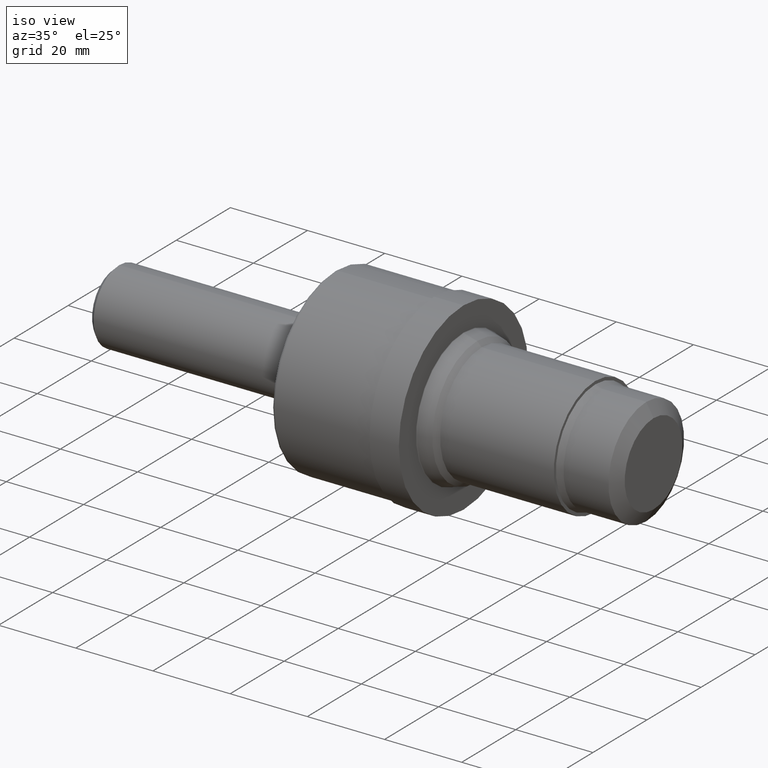
[diagram: clean part render]
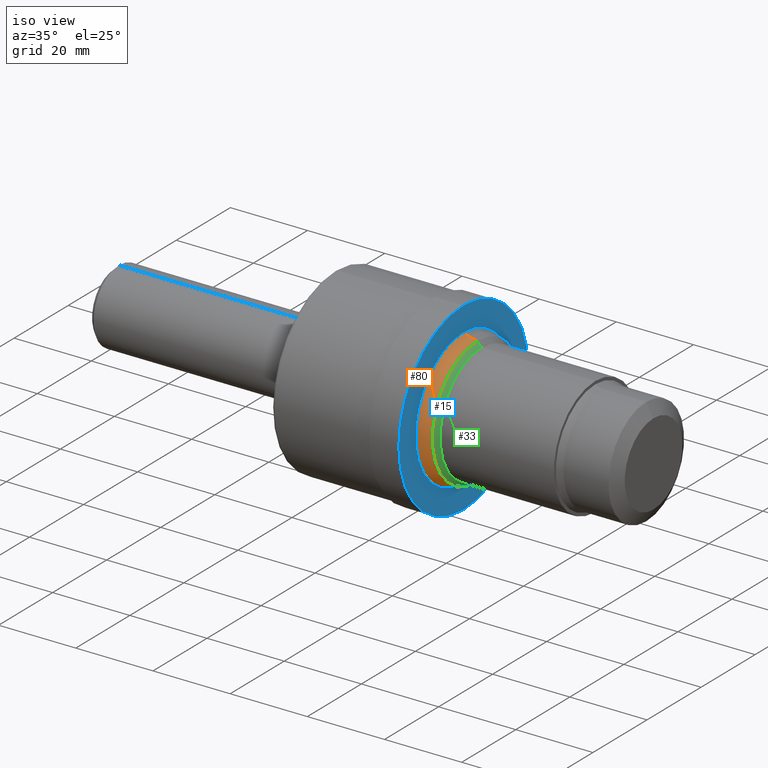
[diagram: same view with three faces highlighted in distinct colors, each labeled with its STEP entity id]
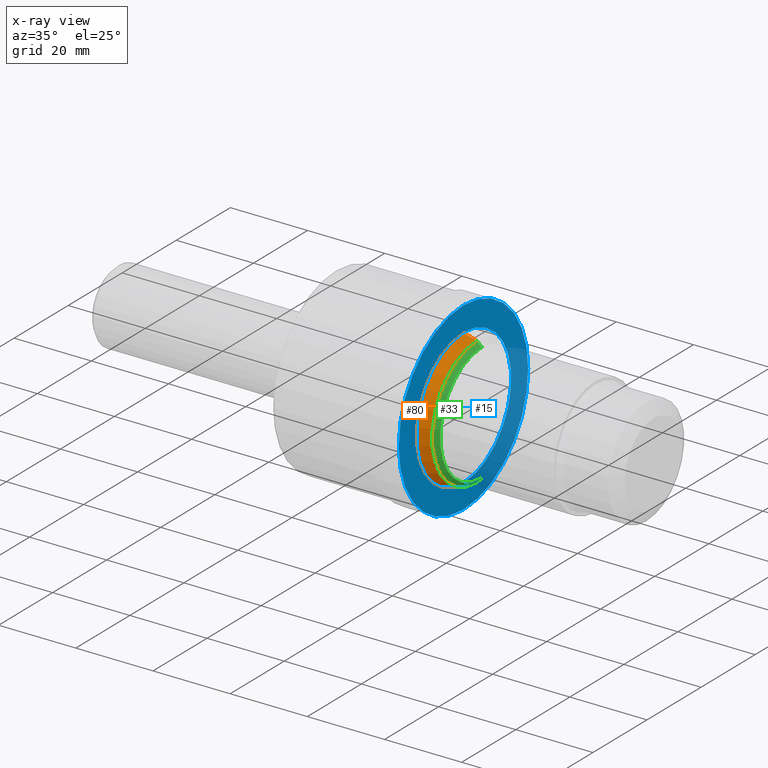
[diagram: x-ray of the same camera — body ghosted, the three highlighted faces saturated]
A machine part, iso view with three faces highlighted in distinct colors.
The next image is the same camera in x-ray (body ghosted, the three faces saturated) — at least one of them is partly hidden behind the body in this view.
Their STEP definitions:

[orange] entity #80 — the highlighted conical surface has half-angle 15 deg.
#37 = ORIENTED_EDGE ( 'NONE', *, *, #867, .T. ) ;
#69 = CARTESIAN_POINT ( 'NONE',  ( 3.566929447639179962, 8.403051286603852342E-17, -0.6861612092935190921 ) ) ;
#80 = ADVANCED_FACE ( 'NONE', ( #123 ), #722, .T. ) ;
#86 = LINE ( 'NONE', #842, #636 ) ;
#113 = CARTESIAN_POINT ( 'NONE',  ( 3.699000000000000288, 0.0000000000000000000, 0.0000000000000000000 ) ) ;
#119 = DIRECTION ( 'NONE',  ( -1.000000000000000000, -0.0000000000000000000, -0.0000000000000000000 ) ) ;
#123 = FACE_OUTER_BOUND ( 'NONE', #584, .T. ) ;
#141 = CARTESIAN_POINT ( 'NONE',  ( 3.699000000000000288, 0.0000000000000000000, 0.6507730114445050562 ) ) ;
#143 = ORIENTED_EDGE ( 'NONE', *, *, #638, .F. ) ;
#148 = DIRECTION ( 'NONE',  ( 0.0000000000000000000, 0.0000000000000000000, 1.000000000000000000 ) ) ;
#156 = ORIENTED_EDGE ( 'NONE', *, *, #260, .F. ) ;
#186 = DIRECTION ( 'NONE',  ( -0.9659258262890679791, 3.169619151431769255E-17, -0.2588190451025211281 ) ) ;
#240 = AXIS2_PLACEMENT_3D ( 'NONE', #443, #618, #557 ) ;
#242 = CARTESIAN_POINT ( 'NONE',  ( 3.699000000000000288, 0.0000000000000000000, 0.0000000000000000000 ) ) ;
#260 = EDGE_CURVE ( 'NONE', #433, #634, #289, .T. ) ;
#267 = DIRECTION ( 'NONE',  ( 0.0000000000000000000, 0.0000000000000000000, 1.000000000000000000 ) ) ;
#289 = LINE ( 'NONE', #498, #624 ) ;
#312 = CIRCLE ( 'NONE', #240, 0.6861612092935190921 ) ;
#424 = VERTEX_POINT ( 'NONE', #705 ) ;
#433 = VERTEX_POINT ( 'NONE', #864 ) ;
#443 = CARTESIAN_POINT ( 'NONE',  ( 3.566929447639179962, 0.0000000000000000000, 0.0000000000000000000 ) ) ;
#485 = DIRECTION ( 'NONE',  ( -1.000000000000000000, -0.0000000000000000000, -0.0000000000000000000 ) ) ;
#498 = CARTESIAN_POINT ( 'NONE',  ( 3.699000000000000288, 7.969670854369969121E-17, -0.6507730114445050562 ) ) ;
#554 = VERTEX_POINT ( 'NONE', #141 ) ;
#557 = DIRECTION ( 'NONE',  ( 0.0000000000000000000, 0.0000000000000000000, 1.000000000000000000 ) ) ;
#567 = ORIENTED_EDGE ( 'NONE', *, *, #730, .T. ) ;
#584 = EDGE_LOOP ( 'NONE', ( #156, #567, #37, #143 ) ) ;
#608 = CIRCLE ( 'NONE', #688, 0.6507730114445050562 ) ;
#618 = DIRECTION ( 'NONE',  ( -1.000000000000000000, -0.0000000000000000000, -0.0000000000000000000 ) ) ;
#624 = VECTOR ( 'NONE', #186, 39.37007874015748854 ) ;
#634 = VERTEX_POINT ( 'NONE', #69 ) ;
#636 = VECTOR ( 'NONE', #657, 39.37007874015748854 ) ;
#638 = EDGE_CURVE ( 'NONE', #634, #424, #312, .T. ) ;
#657 = DIRECTION ( 'NONE',  ( -0.9659258262890679791, 0.0000000000000000000, 0.2588190451025211281 ) ) ;
#688 = AXIS2_PLACEMENT_3D ( 'NONE', #113, #485, #148 ) ;
#705 = CARTESIAN_POINT ( 'NONE',  ( 3.566929447639179962, 0.0000000000000000000, 0.6861612092935190921 ) ) ;
#722 = CONICAL_SURFACE ( 'NONE', #747, 0.6507730114445050562, 0.2617993877991498519 ) ;
#730 = EDGE_CURVE ( 'NONE', #433, #554, #608, .T. ) ;
#747 = AXIS2_PLACEMENT_3D ( 'NONE', #242, #119, #267 ) ;
#842 = CARTESIAN_POINT ( 'NONE',  ( 3.699000000000000288, 0.0000000000000000000, 0.6507730114445050562 ) ) ;
#864 = CARTESIAN_POINT ( 'NONE',  ( 3.699000000000000288, 7.969670854369969121E-17, -0.6507730114445050562 ) ) ;
#867 = EDGE_CURVE ( 'NONE', #554, #424, #86, .T. ) ;

[blue] entity #15 — the highlighted planar face has unit normal (-1, 0, -0).
#2 = CIRCLE ( 'NONE', #286, 0.9425000000000000044 ) ;
#15 = ADVANCED_FACE ( 'NONE', ( #93, #337 ), #437, .F. ) ;
#16 = DIRECTION ( 'NONE',  ( -1.000000000000000000, -0.0000000000000000000, -0.0000000000000000000 ) ) ;
#34 = VERTEX_POINT ( 'NONE', #311 ) ;
#79 = DIRECTION ( 'NONE',  ( 0.0000000000000000000, 0.0000000000000000000, 1.000000000000000000 ) ) ;
#93 = FACE_OUTER_BOUND ( 'NONE', #190, .T. ) ;
#104 = DIRECTION ( 'NONE',  ( -1.000000000000000000, -0.0000000000000000000, -0.0000000000000000000 ) ) ;
#111 = DIRECTION ( 'NONE',  ( 0.0000000000000000000, 0.0000000000000000000, 1.000000000000000000 ) ) ;
#118 = AXIS2_PLACEMENT_3D ( 'NONE', #581, #598, #595 ) ;
#124 = CARTESIAN_POINT ( 'NONE',  ( 3.560999999999999943, 1.154229608196380369E-16, -0.9425000000000000044 ) ) ;
#142 = CARTESIAN_POINT ( 'NONE',  ( 3.560999999999999943, 0.0000000000000000000, 0.0000000000000000000 ) ) ;
#190 = EDGE_LOOP ( 'NONE', ( #571, #560 ) ) ;
#269 = AXIS2_PLACEMENT_3D ( 'NONE', #590, #16, #579 ) ;
#286 = AXIS2_PLACEMENT_3D ( 'NONE', #142, #514, #525 ) ;
#311 = CARTESIAN_POINT ( 'NONE',  ( 3.560999999999999943, 0.0000000000000000000, 0.6938886159038315515 ) ) ;
#337 = FACE_BOUND ( 'NONE', #524, .T. ) ;
#390 = EDGE_CURVE ( 'NONE', #734, #532, #605, .T. ) ;
#391 = ORIENTED_EDGE ( 'NONE', *, *, #763, .T. ) ;
#411 = CARTESIAN_POINT ( 'NONE',  ( 3.560999999999999943, 8.497684724314145644E-17, -0.6938886159038315515 ) ) ;
#420 = AXIS2_PLACEMENT_3D ( 'NONE', #609, #104, #111 ) ;
#429 = AXIS2_PLACEMENT_3D ( 'NONE', #813, #816, #79 ) ;
#437 = PLANE ( 'NONE',  #118 ) ;
#490 = CIRCLE ( 'NONE', #269, 0.6938886159038315515 ) ;
#514 = DIRECTION ( 'NONE',  ( -1.000000000000000000, -0.0000000000000000000, -0.0000000000000000000 ) ) ;
#524 = EDGE_LOOP ( 'NONE', ( #652, #391 ) ) ;
#525 = DIRECTION ( 'NONE',  ( 0.0000000000000000000, 0.0000000000000000000, 1.000000000000000000 ) ) ;
#532 = VERTEX_POINT ( 'NONE', #649 ) ;
#560 = ORIENTED_EDGE ( 'NONE', *, *, #390, .F. ) ;
#571 = ORIENTED_EDGE ( 'NONE', *, *, #803, .F. ) ;
#579 = DIRECTION ( 'NONE',  ( 0.0000000000000000000, 0.0000000000000000000, 1.000000000000000000 ) ) ;
#581 = CARTESIAN_POINT ( 'NONE',  ( 3.560999999999999943, 0.9425000000000000044, 0.0000000000000000000 ) ) ;
#582 = EDGE_CURVE ( 'NONE', #34, #814, #490, .T. ) ;
#590 = CARTESIAN_POINT ( 'NONE',  ( 3.560999999999999943, 0.0000000000000000000, 0.0000000000000000000 ) ) ;
#595 = DIRECTION ( 'NONE',  ( -0.0000000000000000000, 0.0000000000000000000, 1.000000000000000000 ) ) ;
#598 = DIRECTION ( 'NONE',  ( -1.000000000000000000, 0.0000000000000000000, -0.0000000000000000000 ) ) ;
#605 = CIRCLE ( 'NONE', #429, 0.9425000000000000044 ) ;
#609 = CARTESIAN_POINT ( 'NONE',  ( 3.560999999999999943, 0.0000000000000000000, 0.0000000000000000000 ) ) ;
#628 = CIRCLE ( 'NONE', #420, 0.6938886159038315515 ) ;
#649 = CARTESIAN_POINT ( 'NONE',  ( 3.560999999999999943, 0.0000000000000000000, 0.9425000000000000044 ) ) ;
#652 = ORIENTED_EDGE ( 'NONE', *, *, #582, .T. ) ;
#734 = VERTEX_POINT ( 'NONE', #124 ) ;
#763 = EDGE_CURVE ( 'NONE', #814, #34, #628, .T. ) ;
#803 = EDGE_CURVE ( 'NONE', #532, #734, #2, .T. ) ;
#813 = CARTESIAN_POINT ( 'NONE',  ( 3.560999999999999943, 0.0000000000000000000, 0.0000000000000000000 ) ) ;
#814 = VERTEX_POINT ( 'NONE', #411 ) ;
#816 = DIRECTION ( 'NONE',  ( -1.000000000000000000, -0.0000000000000000000, -0.0000000000000000000 ) ) ;

[green] entity #33 — the highlighted conical surface has half-angle 45 deg.
#33 = ADVANCED_FACE ( 'NONE', ( #682 ), #358, .T. ) ;
#113 = CARTESIAN_POINT ( 'NONE',  ( 3.699000000000000288, 0.0000000000000000000, 0.0000000000000000000 ) ) ;
#141 = CARTESIAN_POINT ( 'NONE',  ( 3.699000000000000288, 0.0000000000000000000, 0.6507730114445050562 ) ) ;
#148 = DIRECTION ( 'NONE',  ( 0.0000000000000000000, 0.0000000000000000000, 1.000000000000000000 ) ) ;
#188 = ORIENTED_EDGE ( 'NONE', *, *, #730, .F. ) ;
#210 = CARTESIAN_POINT ( 'NONE',  ( 3.745273011444504974, 7.402989900845750385E-17, -0.6045000000000000373 ) ) ;
#254 = DIRECTION ( 'NONE',  ( -0.7071067811865449082, 0.0000000000000000000, 0.7071067811865501263 ) ) ;
#295 = AXIS2_PLACEMENT_3D ( 'NONE', #372, #449, #402 ) ;
#358 = CONICAL_SURFACE ( 'NONE', #295, 0.6045000000000000373, 0.7853981633974520538 ) ;
#362 = VECTOR ( 'NONE', #254, 39.37007874015748143 ) ;
#368 = AXIS2_PLACEMENT_3D ( 'NONE', #459, #465, #469 ) ;
#372 = CARTESIAN_POINT ( 'NONE',  ( 3.745273011444504974, 0.0000000000000000000, 0.0000000000000000000 ) ) ;
#383 = CIRCLE ( 'NONE', #368, 0.6045000000000000373 ) ;
#402 = DIRECTION ( 'NONE',  ( 0.0000000000000000000, 0.0000000000000000000, 1.000000000000000000 ) ) ;
#410 = ORIENTED_EDGE ( 'NONE', *, *, #793, .T. ) ;
#433 = VERTEX_POINT ( 'NONE', #864 ) ;
#449 = DIRECTION ( 'NONE',  ( -1.000000000000000000, -0.0000000000000000000, -0.0000000000000000000 ) ) ;
#459 = CARTESIAN_POINT ( 'NONE',  ( 3.745273011444504974, 0.0000000000000000000, 0.0000000000000000000 ) ) ;
#465 = DIRECTION ( 'NONE',  ( -1.000000000000000000, -0.0000000000000000000, -0.0000000000000000000 ) ) ;
#469 = DIRECTION ( 'NONE',  ( 0.0000000000000000000, 0.0000000000000000000, 1.000000000000000000 ) ) ;
#485 = DIRECTION ( 'NONE',  ( -1.000000000000000000, -0.0000000000000000000, -0.0000000000000000000 ) ) ;
#501 = ORIENTED_EDGE ( 'NONE', *, *, #565, .F. ) ;
#516 = EDGE_CURVE ( 'NONE', #748, #554, #559, .T. ) ;
#554 = VERTEX_POINT ( 'NONE', #141 ) ;
#559 = LINE ( 'NONE', #762, #362 ) ;
#565 = EDGE_CURVE ( 'NONE', #639, #433, #865, .T. ) ;
#608 = CIRCLE ( 'NONE', #688, 0.6507730114445050562 ) ;
#639 = VERTEX_POINT ( 'NONE', #704 ) ;
#658 = ORIENTED_EDGE ( 'NONE', *, *, #516, .T. ) ;
#674 = CARTESIAN_POINT ( 'NONE',  ( 3.745273011444504974, 0.0000000000000000000, 0.6045000000000000373 ) ) ;
#680 = VECTOR ( 'NONE', #806, 39.37007874015748143 ) ;
#682 = FACE_OUTER_BOUND ( 'NONE', #739, .T. ) ;
#688 = AXIS2_PLACEMENT_3D ( 'NONE', #113, #485, #148 ) ;
#704 = CARTESIAN_POINT ( 'NONE',  ( 3.745273011444504974, 7.402989900845750385E-17, -0.6045000000000000373 ) ) ;
#730 = EDGE_CURVE ( 'NONE', #433, #554, #608, .T. ) ;
#739 = EDGE_LOOP ( 'NONE', ( #501, #410, #658, #188 ) ) ;
#748 = VERTEX_POINT ( 'NONE', #674 ) ;
#762 = CARTESIAN_POINT ( 'NONE',  ( 3.745273011444504974, 0.0000000000000000000, 0.6045000000000000373 ) ) ;
#793 = EDGE_CURVE ( 'NONE', #639, #748, #383, .T. ) ;
#806 = DIRECTION ( 'NONE',  ( -0.7071067811865449082, 8.659560562354964906E-17, -0.7071067811865501263 ) ) ;
#864 = CARTESIAN_POINT ( 'NONE',  ( 3.699000000000000288, 7.969670854369969121E-17, -0.6507730114445050562 ) ) ;
#865 = LINE ( 'NONE', #210, #680 ) ;